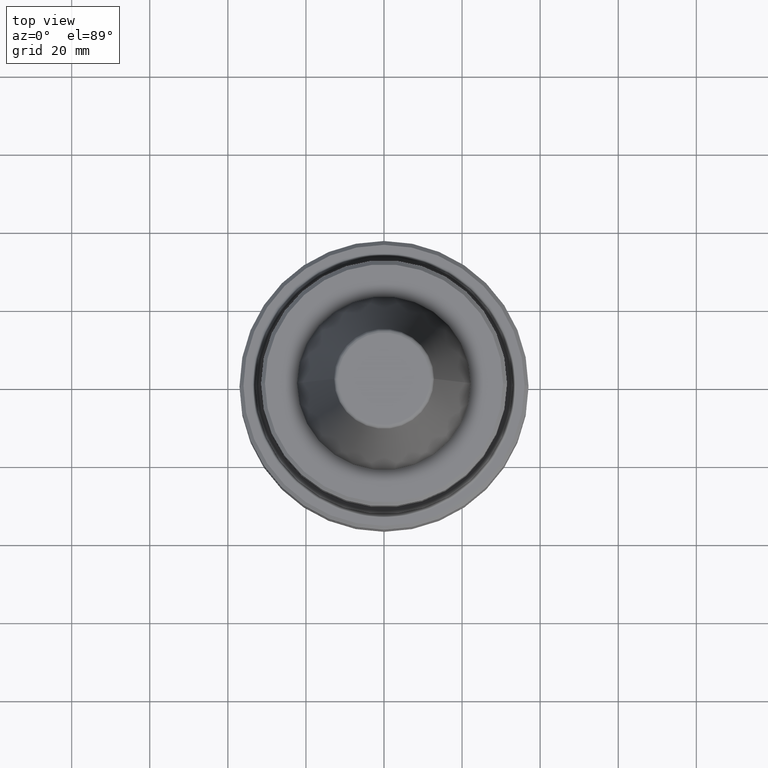
[diagram: clean part render]
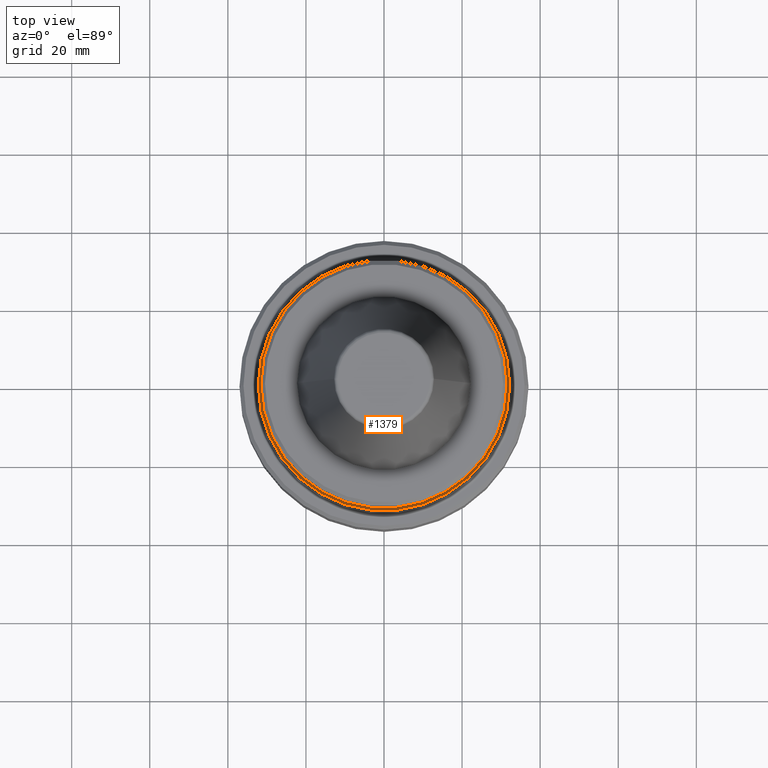
[diagram: same view with one face highlighted and labeled with its STEP entity id]
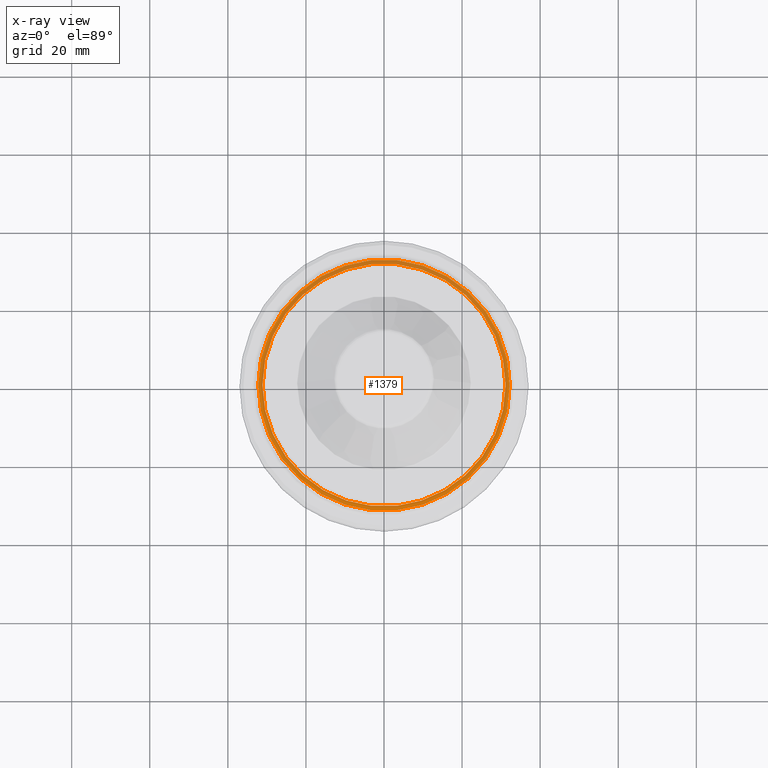
[diagram: x-ray of the same camera — body ghosted, the highlighted face saturated]
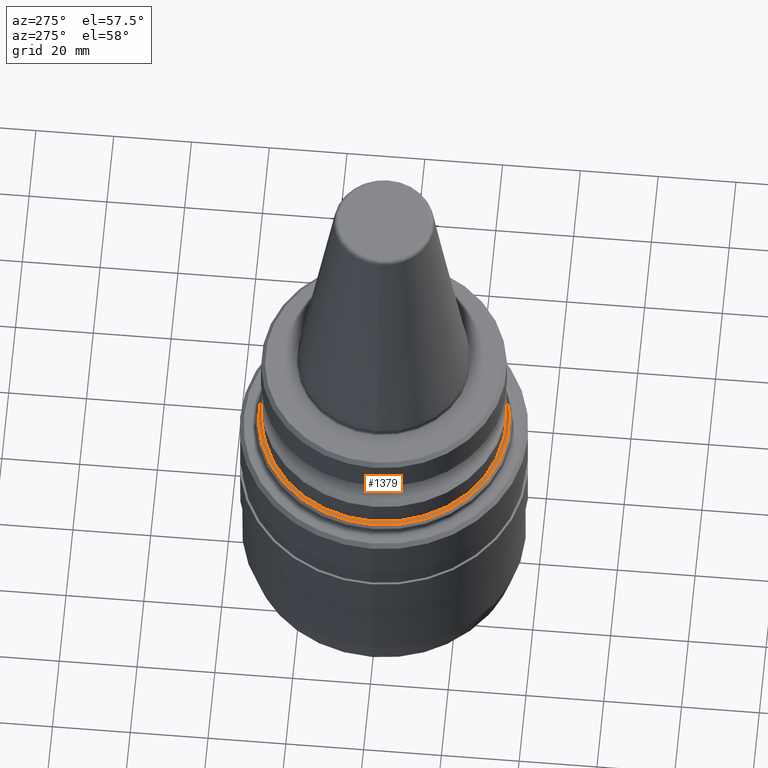
[diagram: same view with one face highlighted and labeled with its STEP entity id]
A machine part, top view. The second image highlights one B-rep face of the part: STEP entity #1379.
The next image is the same camera in x-ray: the body ghosted, the highlighted face saturated — about 38% of this face is hidden behind the body in this view.
A second angle (auxiliary view) of the same face is appended — the face is thin or edge-on in the first view.
In plain terms, the highlighted planar face has unit normal (0, 0, -1).
Its self-contained STEP definition (entity closure, byte-faithful):
#5 = VERTEX_POINT ( 'NONE', #1191 ) ;
#12 = CARTESIAN_POINT ( 'NONE',  ( 0.0000000000000000000, 0.0000000000000000000, -29.00000000000124700 ) ) ;
#86 = DIRECTION ( 'NONE',  ( 0.0000000000000000000, 0.0000000000000000000, -1.000000000000000000 ) ) ;
#123 = EDGE_CURVE ( 'NONE', #5, #1198, #1263, .T. ) ;
#134 = CARTESIAN_POINT ( 'NONE',  ( 0.0000000000000000000, 0.0000000000000000000, -29.00000000000124700 ) ) ;
#143 = EDGE_CURVE ( 'NONE', #658, #1547, #507, .T. ) ;
#213 = CARTESIAN_POINT ( 'NONE',  ( 31.11602540378063600, 0.0000000000000000000, -29.00000000000124700 ) ) ;
#259 = PLANE ( 'NONE',  #1458 ) ;
#276 = ORIENTED_EDGE ( 'NONE', *, *, #668, .T. ) ;
#335 = CARTESIAN_POINT ( 'NONE',  ( 0.0000000000000000000, 0.0000000000000000000, -29.00000000000124700 ) ) ;
#340 = ORIENTED_EDGE ( 'NONE', *, *, #690, .T. ) ;
#411 = DIRECTION ( 'NONE',  ( -1.000000000000000000, 0.0000000000000000000, -0.0000000000000000000 ) ) ;
#438 = CARTESIAN_POINT ( 'NONE',  ( -32.20000000000000300, 0.0000000000000000000, -29.00000000000124700 ) ) ;
#507 = CIRCLE ( 'NONE', #1539, 32.20000000000000300 ) ;
#553 = DIRECTION ( 'NONE',  ( -1.000000000000000000, 0.0000000000000000000, 0.0000000000000000000 ) ) ;
#577 = DIRECTION ( 'NONE',  ( 1.000000000000000000, 0.0000000000000000000, 0.0000000000000000000 ) ) ;
#615 = DIRECTION ( 'NONE',  ( -0.0000000000000000000, -0.0000000000000000000, 1.000000000000000000 ) ) ;
#625 = AXIS2_PLACEMENT_3D ( 'NONE', #703, #615, #665 ) ;
#645 = ORIENTED_EDGE ( 'NONE', *, *, #143, .T. ) ;
#655 = DIRECTION ( 'NONE',  ( 0.0000000000000000000, 0.0000000000000000000, -1.000000000000000000 ) ) ;
#658 = VERTEX_POINT ( 'NONE', #1022 ) ;
#659 = ORIENTED_EDGE ( 'NONE', *, *, #123, .T. ) ;
#665 = DIRECTION ( 'NONE',  ( 1.000000000000000000, 0.0000000000000000000, 0.0000000000000000000 ) ) ;
#668 = EDGE_CURVE ( 'NONE', #1198, #5, #1043, .T. ) ;
#690 = EDGE_CURVE ( 'NONE', #1547, #658, #1253, .T. ) ;
#703 = CARTESIAN_POINT ( 'NONE',  ( 0.0000000000000000000, 0.0000000000000000000, -29.00000000000124700 ) ) ;
#796 = DIRECTION ( 'NONE',  ( -0.0000000000000000000, -0.0000000000000000000, 1.000000000000000000 ) ) ;
#879 = FACE_BOUND ( 'NONE', #1256, .T. ) ;
#894 = DIRECTION ( 'NONE',  ( -1.000000000000000000, 0.0000000000000000000, 0.0000000000000000000 ) ) ;
#905 = CARTESIAN_POINT ( 'NONE',  ( 0.0000000000000000000, 0.0000000000000000000, -29.00000000000124700 ) ) ;
#1012 = EDGE_LOOP ( 'NONE', ( #340, #645 ) ) ;
#1022 = CARTESIAN_POINT ( 'NONE',  ( 32.20000000000000300, 3.992348565220366500E-015, -29.00000000000124700 ) ) ;
#1036 = AXIS2_PLACEMENT_3D ( 'NONE', #335, #1541, #894 ) ;
#1043 = CIRCLE ( 'NONE', #1036, 31.11602540378063600 ) ;
#1191 = CARTESIAN_POINT ( 'NONE',  ( -31.11602540378063600, 3.818817669313885500E-015, -29.00000000000124700 ) ) ;
#1198 = VERTEX_POINT ( 'NONE', #213 ) ;
#1241 = FACE_OUTER_BOUND ( 'NONE', #1012, .T. ) ;
#1253 = CIRCLE ( 'NONE', #625, 32.20000000000000300 ) ;
#1256 = EDGE_LOOP ( 'NONE', ( #276, #659 ) ) ;
#1263 = CIRCLE ( 'NONE', #1581, 31.11602540378063600 ) ;
#1379 = ADVANCED_FACE ( 'NONE', ( #1241, #879 ), #259, .F. ) ;
#1458 = AXIS2_PLACEMENT_3D ( 'NONE', #905, #655, #411 ) ;
#1539 = AXIS2_PLACEMENT_3D ( 'NONE', #134, #796, #577 ) ;
#1541 = DIRECTION ( 'NONE',  ( 0.0000000000000000000, 0.0000000000000000000, -1.000000000000000000 ) ) ;
#1547 = VERTEX_POINT ( 'NONE', #438 ) ;
#1581 = AXIS2_PLACEMENT_3D ( 'NONE', #12, #86, #553 ) ;